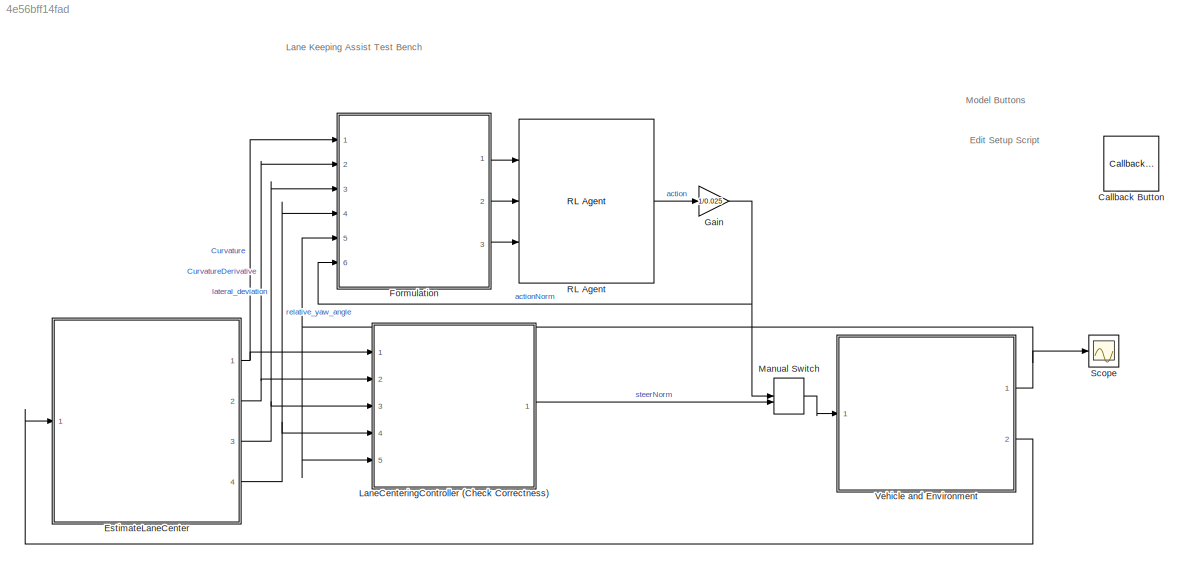
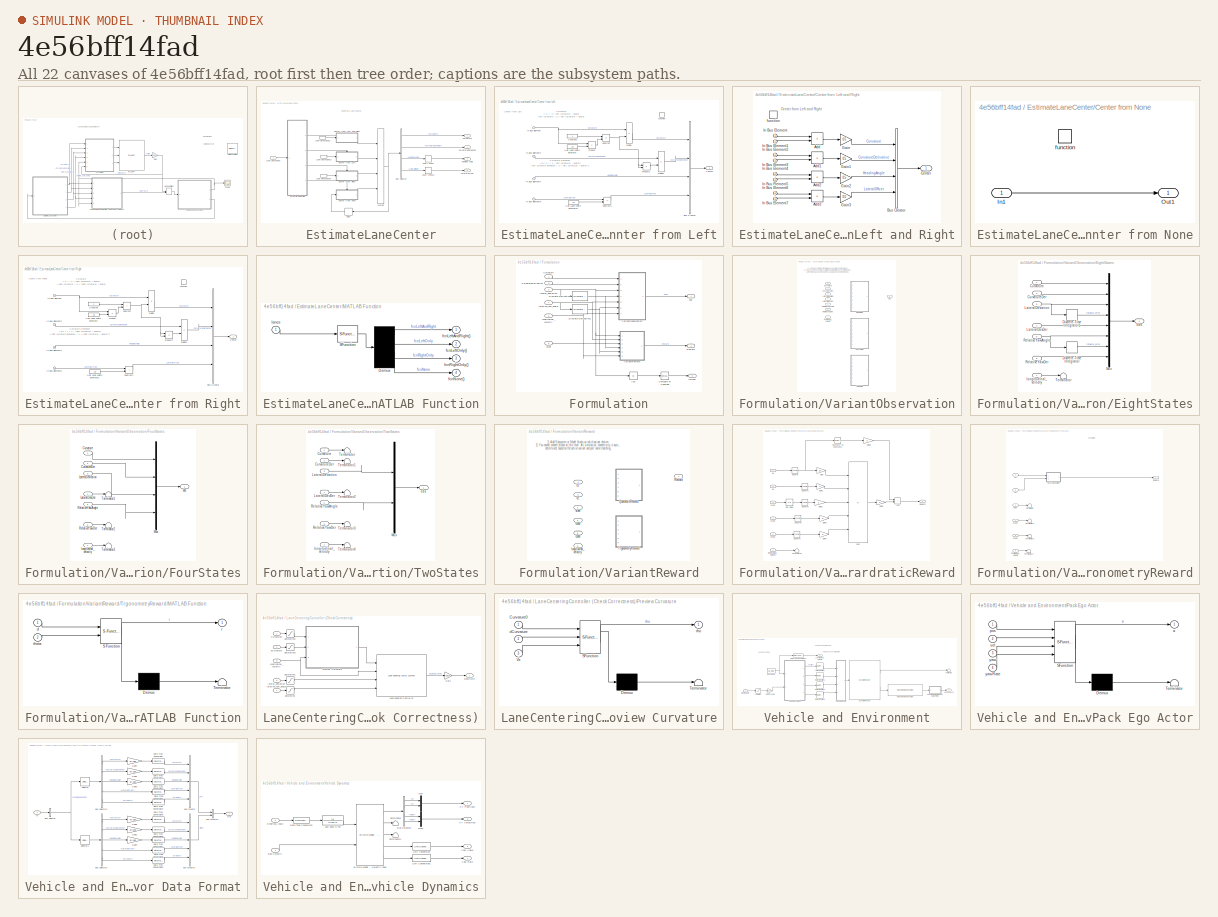
[diagram: thumbnail index - all 22 canvases of the model, root first then tree order]
MODEL slx_4e56bff14fad
KIND model
CONFIG AbsTol = auto
CONFIG EnableMultiTasking = off
CONFIG FixedStep = auto
CONFIG MaxStep = auto
CONFIG MinStep = auto
CONFIG PostLoadFcn = helperLKASetUp
CONFIG RelTol = 1e-3
CONFIG SampleTimeConstraint = Unconstrained
CONFIG SolverName = VariableStepAuto
CONFIG StartTime = 0.0
CONFIG StopTime = simStopTime
BLOCK [CallbackButton] Callback Button
  ButtonText = ?
  ClickFcn = exampleID = 'LaneKeepingAssistWithLaneDetectionExample';\nexampleName = 'lane-keeping-assist-with-lane-detection.html';\nif license('test','automated_driving_toolbox') && ~isempty(ver('driving'))\n    helpview('driving',exampleID);\nelseif license('test','MPC_Toolbox') && ~isempty(ver('mpc'))\n    helpview('mpc',exampleID);\nelse\n    web(fullfile('https://www.mathworks.com/help','driving','examples',exa...<+44ch>
BLOCK [SubSystem] EstimateLaneCenter
  Ports = [1, 4]
  RequestExecContextInheritance = off
  VariantControl = v2
BLOCK [BusSelector] EstimateLaneCenter/Bus Selector
  OutputSignals = Curvature,CurvatureDerivative,HeadingAngle,LateralOffset
  Ports = [1, 4]
BLOCK [SubSystem] EstimateLaneCenter/Center from Left
  Ports = [1, 1, 0, 1]
  RequestExecContextInheritance = off
  TreatAsAtomicUnit = on
BLOCK [SubSystem] EstimateLaneCenter/Center from Left and Right
  Ports = [1, 1, 0, 1]
  RequestExecContextInheritance = off
  TreatAsAtomicUnit = on
BLOCK [Sum] EstimateLaneCenter/Center from Left and Right/Add
  IconShape = rectangular
  Ports = [2, 1]
BLOCK [Sum] EstimateLaneCenter/Center from Left and Right/Add1
  IconShape = rectangular
  Ports = [2, 1]
BLOCK [Sum] EstimateLaneCenter/Center from Left and Right/Add2
  IconShape = rectangular
  Ports = [2, 1]
BLOCK [Sum] EstimateLaneCenter/Center from Left and Right/Add3
  IconShape = rectangular
  Ports = [2, 1]
BLOCK [BusCreator] EstimateLaneCenter/Center from Left and Right/Bus Creator
  DisplayOption = bar
  InheritFromInputs = on
  Inputs = 4
  Ports = [4, 1]
BLOCK [Outport] EstimateLaneCenter/Center from Left and Right/Center
  VectorParamsAs1DForOutWhenUnconnected = off
BLOCK [Gain] EstimateLaneCenter/Center from Left and Right/Gain
  Gain = 0.5
BLOCK [Gain] EstimateLaneCenter/Center from Left and Right/Gain1
  Gain = 0.5
BLOCK [Gain] EstimateLaneCenter/Center from Left and Right/Gain2
  Gain = 0.5
BLOCK [Gain] EstimateLaneCenter/Center from Left and Right/Gain3
  Gain = 0.5
BLOCK [Inport] EstimateLaneCenter/Center from Left and Right/In Bus Element
BLOCK [Inport] EstimateLaneCenter/Center from Left and Right/In Bus Element1
BLOCK [Inport] EstimateLaneCenter/Center from Left and Right/In Bus Element2
BLOCK [Inport] EstimateLaneCenter/Center from Left and Right/In Bus Element3
BLOCK [Inport] EstimateLaneCenter/Center from Left and Right/In Bus Element4
BLOCK [Inport] EstimateLaneCenter/Center from Left and Right/In Bus Element5
BLOCK [Inport] EstimateLaneCenter/Center from Left and Right/In Bus Element6
BLOCK [Inport] EstimateLaneCenter/Center from Left and Right/In Bus Element7
BLOCK [TriggerPort] EstimateLaneCenter/Center from Left and Right/function
  Ports = []
  StatesWhenEnabling = held
  TriggerType = function-call
  VariantControl = Variant
BLOCK [BusCreator] EstimateLaneCenter/Center from Left/Bus Creator
  DisplayOption = bar
  InheritFromInputs = on
  Inputs = 4
  Ports = [4, 1]
BLOCK [Outport] EstimateLaneCenter/Center from Left/Center
  VectorParamsAs1DForOutWhenUnconnected = off
BLOCK [Constant] EstimateLaneCenter/Center from Left/Constant
  OutDataTypeStr = Inherit: Inherit via back propagation
BLOCK [Product] EstimateLaneCenter/Center from Left/Divide
  Inputs = */
  Ports = [2, 1]
BLOCK [Product] EstimateLaneCenter/Center from Left/Divide1
  Inputs = */
  Ports = [2, 1]
BLOCK [Constant] EstimateLaneCenter/Center from Left/Half Lane Width Estimate
  OutDataTypeStr = Inherit: Inherit via back propagation
  Value = 1.8
BLOCK [Constant] EstimateLaneCenter/Center from Left/Half Lane Width Estimate1
  OutDataTypeStr = Inherit: Inherit via back propagation
  Value = 1.8
BLOCK [Inport] EstimateLaneCenter/Center from Left/In Bus Element
BLOCK [Inport] EstimateLaneCenter/Center from Left/In Bus Element2
BLOCK [Inport] EstimateLaneCenter/Center from Left/In Bus Element4
BLOCK [Inport] EstimateLaneCenter/Center from Left/In Bus Element6
BLOCK [Product] EstimateLaneCenter/Center from Left/Product
  Ports = [2, 1]
BLOCK [Product] EstimateLaneCenter/Center from Left/Product1
  Ports = [2, 1]
BLOCK [Sum] EstimateLaneCenter/Center from Left/Subtract
  IconShape = rectangular
  Inputs = +-
  Ports = [2, 1]
BLOCK [Sum] EstimateLaneCenter/Center from Left/Subtract1
  IconShape = rectangular
  Inputs = +-
  Ports = [2, 1]
BLOCK [TriggerPort] EstimateLaneCenter/Center from Left/function
  Ports = []
  StatesWhenEnabling = held
  TriggerType = function-call
  VariantControl = Variant
BLOCK [SubSystem] EstimateLaneCenter/Center from None
  Ports = [1, 1, 0, 1]
  RequestExecContextInheritance = off
  TreatAsAtomicUnit = on
BLOCK [Inport] EstimateLaneCenter/Center from None/In1
BLOCK [Outport] EstimateLaneCenter/Center from None/Out1
  VectorParamsAs1DForOutWhenUnconnected = off
BLOCK [TriggerPort] EstimateLaneCenter/Center from None/function
  Ports = []
  StatesWhenEnabling = held
  TriggerType = function-call
  VariantControl = Variant
BLOCK [SubSystem] EstimateLaneCenter/Center from Right
  Ports = [1, 1, 0, 1]
  RequestExecContextInheritance = off
  TreatAsAtomicUnit = on
BLOCK [BusCreator] EstimateLaneCenter/Center from Right/Bus Creator
  DisplayOption = bar
  InheritFromInputs = on
  Inputs = 4
  Ports = [4, 1]
BLOCK [Outport] EstimateLaneCenter/Center from Right/Center
  VectorParamsAs1DForOutWhenUnconnected = off
BLOCK [Constant] EstimateLaneCenter/Center from Right/Constant
  OutDataTypeStr = Inherit: Inherit via back propagation
BLOCK [Product] EstimateLaneCenter/Center from Right/Divide
  Inputs = */
  Ports = [2, 1]
BLOCK [Product] EstimateLaneCenter/Center from Right/Divide1
  Inputs = */
  Ports = [2, 1]
BLOCK [Constant] EstimateLaneCenter/Center from Right/Half Lane Width Estimate
  OutDataTypeStr = Inherit: Inherit via back propagation
  Value = 1.8
BLOCK [Constant] EstimateLaneCenter/Center from Right/Half Lane Width Estimate1
  OutDataTypeStr = Inherit: Inherit via back propagation
  Value = 1.8
BLOCK [Inport] EstimateLaneCenter/Center from Right/In Bus Element
BLOCK [Inport] EstimateLaneCenter/Center from Right/In Bus Element2
BLOCK [Inport] EstimateLaneCenter/Center from Right/In Bus Element4
BLOCK [Inport] EstimateLaneCenter/Center from Right/In Bus Element6
BLOCK [Product] EstimateLaneCenter/Center from Right/Product
  Ports = [2, 1]
BLOCK [Product] EstimateLaneCenter/Center from Right/Product1
  Ports = [2, 1]
BLOCK [Sum] EstimateLaneCenter/Center from Right/Subtract
  IconShape = rectangular
  Ports = [2, 1]
BLOCK [Sum] EstimateLaneCenter/Center from Right/Subtract1
  IconShape = rectangular
  Ports = [2, 1]
BLOCK [TriggerPort] EstimateLaneCenter/Center from Right/function
  Ports = []
  StatesWhenEnabling = held
  TriggerType = function-call
  VariantControl = Variant
BLOCK [Outport] EstimateLaneCenter/Curvature
  VectorParamsAs1DForOutWhenUnconnected = off
BLOCK [Outport] EstimateLaneCenter/CurvatureDerivative
  Port = 2
  VectorParamsAs1DForOutWhenUnconnected = off
BLOCK [Delay] EstimateLaneCenter/Delay
  DelayLength = 1
  InputPortMap = u0
  Ports = [1, 1]
BLOCK [Outport] EstimateLaneCenter/Heading Angle
  Port = 4
  VectorParamsAs1DForOutWhenUnconnected = off
BLOCK [Inport] EstimateLaneCenter/Lane Detections
BLOCK [InportShadow] EstimateLaneCenter/Lane Detections2
BLOCK [InportShadow] EstimateLaneCenter/Lane Detections3
BLOCK [InportShadow] EstimateLaneCenter/Lane Detections4
BLOCK [Outport] EstimateLaneCenter/Lateral Offset
  Port = 3
  VectorParamsAs1DForOutWhenUnconnected = off
BLOCK [SubSystem] EstimateLaneCenter/MATLAB Function
  ErrorFcn = Stateflow.Translate.translate
  PermitHierarchicalResolution = ExplicitOnly
  Ports = [1, 4]
  RequestExecContextInheritance = off
  SFBlockType = MATLAB Function
  TreatAsAtomicUnit = on
BLOCK [Demux] EstimateLaneCenter/MATLAB Function/ Demux 
  Ports = [1, 4]
BLOCK [S-Function] EstimateLaneCenter/MATLAB Function/ SFunction 
  EnableBusSupport = on
  FunctionName = sf_sfun
  PortCounts = [1 1]
  Ports = [1, 1]
  SFcnIsStateOwnerBlock = off
  SFunctionDeploymentMode = off
  Tag = Stateflow S-Function 9
BLOCK [Outport] EstimateLaneCenter/MATLAB Function/fcnLeftAndRight()
  VectorParamsAs1DForOutWhenUnconnected = off
BLOCK [Outport] EstimateLaneCenter/MATLAB Function/fcnLeftOnly()
  Port = 2
  VectorParamsAs1DForOutWhenUnconnected = off
BLOCK [Outport] EstimateLaneCenter/MATLAB Function/fcnNone()
  Port = 4
  VectorParamsAs1DForOutWhenUnconnected = off
BLOCK [Outport] EstimateLaneCenter/MATLAB Function/fcnRightOnly()
  Port = 3
  VectorParamsAs1DForOutWhenUnconnected = off
BLOCK [Inport] EstimateLaneCenter/MATLAB Function/lanes
BLOCK [Merge] EstimateLaneCenter/Merge
  Inputs = 4
  Ports = [4, 1]
BLOCK [UnaryMinus] EstimateLaneCenter/Unary Minus
BLOCK [UnaryMinus] EstimateLaneCenter/Unary Minus1
BLOCK [SubSystem] Formulation
  Ports = [6, 3]
  RequestExecContextInheritance = off
BLOCK [Abs] Formulation/Abs
  SaturateOnIntegerOverflow = off
BLOCK [Reference] Formulation/Compare To Constant  REF=simulink/Logic and Bit
Operations/Compare
To Constant
  Ports = [1, 1]
  SourceBlock = simulink/Logic and Bit\nOperations/Compare\nTo Constant
  SourceProductBaseCode = SL
  SourceType = Compare To Constant
BLOCK [Inport] Formulation/Curvature
BLOCK [Inport] Formulation/CurvatureDerivative
  Port = 2
BLOCK [Reference] Formulation/Discrete Derivative  REF=simulink/Discrete/Discrete Derivative
  Ports = [1, 1]
  SourceBlock = simulink/Discrete/Discrete Derivative
  SourceProductBaseCode = SL
  SourceType = Discrete Derivative
BLOCK [Reference] Formulation/Discrete Derivative1  REF=simulink/Discrete/Discrete Derivative
  Ports = [1, 1]
  SourceBlock = simulink/Discrete/Discrete Derivative
  SourceProductBaseCode = SL
  SourceType = Discrete Derivative
BLOCK [Outport] Formulation/Reward
  Port = 2
  VectorParamsAs1DForOutWhenUnconnected = off
BLOCK [SubSystem] Formulation/VariantObservation
  Ports = [7, 1]
  RequestExecContextInheritance = off
  Variant = on
BLOCK [Inport] Formulation/VariantObservation/Curvature
BLOCK [Inport] Formulation/VariantObservation/CurvatureDer
  Port = 2
BLOCK [SubSystem] Formulation/VariantObservation/EightStates
  Ports = [7, 1]
  RequestExecContextInheritance = off
  VariantControl = OBSV_MODE_EIGHT
BLOCK [Inport] Formulation/VariantObservation/EightStates/Curvature
BLOCK [Inport] Formulation/VariantObservation/EightStates/CurvatureDer
  Port = 2
BLOCK [DiscreteIntegrator] Formulation/VariantObservation/EightStates/Discrete-Time Integrator
  ICPrevOutput = DiscIntNeverNeededParam
  ICPrevScaledInput = DiscIntNeverNeededParam
  InitialConditionSetting = Auto
  Ports = [1, 1]
  SampleTime = -1
BLOCK [DiscreteIntegrator] Formulation/VariantObservation/EightStates/Discrete-Time Integrator1
  ICPrevOutput = DiscIntNeverNeededParam
  ICPrevScaledInput = DiscIntNeverNeededParam
  InitialConditionSetting = Auto
  Ports = [1, 1]
  SampleTime = -1
BLOCK [Inport] Formulation/VariantObservation/EightStates/LateralDevDer
  Port = 4
BLOCK [Inport] Formulation/VariantObservation/EightStates/LateralDeviation
  Port = 3
BLOCK [Mux] Formulation/VariantObservation/EightStates/Mux
  DisplayOption = bar
  Inputs = 8
  Ports = [8, 1]
BLOCK [Inport] Formulation/VariantObservation/EightStates/RelativeYawAngle
  Port = 5
BLOCK [Inport] Formulation/VariantObservation/EightStates/RelativeYawDer
  Port = 6
BLOCK [Terminator] Formulation/VariantObservation/EightStates/Terminator
BLOCK [Inport] Formulation/VariantObservation/EightStates/longitudinal_velocity
  Port = 7
BLOCK [Outport] Formulation/VariantObservation/EightStates/obs
  VectorParamsAs1DForOutWhenUnconnected = off
BLOCK [SubSystem] Formulation/VariantObservation/FourStates
  Ports = [7, 1]
  RequestExecContextInheritance = off
  VariantControl = OBSV_MODE_FOUR
BLOCK [Inport] Formulation/VariantObservation/FourStates/Curvature
BLOCK [Inport] Formulation/VariantObservation/FourStates/CurvatureDer
  Port = 2
BLOCK [Inport] Formulation/VariantObservation/FourStates/LateralDevDer
  Port = 4
BLOCK [Inport] Formulation/VariantObservation/FourStates/LateralDeviation
  Port = 3
BLOCK [Mux] Formulation/VariantObservation/FourStates/Mux
  DisplayOption = bar
  Ports = [4, 1]
BLOCK [Inport] Formulation/VariantObservation/FourStates/RelativeYawAngle
  Port = 5
BLOCK [Inport] Formulation/VariantObservation/FourStates/RelativeYawDer
  Port = 6
BLOCK [Terminator] Formulation/VariantObservation/FourStates/Terminator1
BLOCK [Terminator] Formulation/VariantObservation/FourStates/Terminator2
BLOCK [Terminator] Formulation/VariantObservation/FourStates/Terminator3
BLOCK [Inport] Formulation/VariantObservation/FourStates/longitudinal_velocity
  Port = 7
BLOCK [Outport] Formulation/VariantObservation/FourStates/obs
  VectorParamsAs1DForOutWhenUnconnected = off
BLOCK [Inport] Formulation/VariantObservation/LateralDevDer
  Port = 4
BLOCK [Inport] Formulation/VariantObservation/LateralDeviation
  Port = 3
BLOCK [Inport] Formulation/VariantObservation/RelativeYawAngle
  Port = 5
BLOCK [Inport] Formulation/VariantObservation/RelativeYawDer
  Port = 6
BLOCK [SubSystem] Formulation/VariantObservation/TwoStates
  Ports = [7, 1]
  RequestExecContextInheritance = off
  VariantControl = OBSV_MODE_TWO
BLOCK [Inport] Formulation/VariantObservation/TwoStates/Curvature
BLOCK [Inport] Formulation/VariantObservation/TwoStates/CurvatureDer
  Port = 2
BLOCK [Inport] Formulation/VariantObservation/TwoStates/LateralDevDer
  Port = 4
BLOCK [Inport] Formulation/VariantObservation/TwoStates/LateralDeviation
  Port = 3
BLOCK [Mux] Formulation/VariantObservation/TwoStates/Mux
  DisplayOption = bar
  Inputs = 2
  Ports = [2, 1]
BLOCK [Inport] Formulation/VariantObservation/TwoStates/RelativeYawAngle
  Port = 5
BLOCK [Inport] Formulation/VariantObservation/TwoStates/RelativeYawDer
  Port = 6
BLOCK [Terminator] Formulation/VariantObservation/TwoStates/Terminator
BLOCK [Terminator] Formulation/VariantObservation/TwoStates/Terminator1
BLOCK [Terminator] Formulation/VariantObservation/TwoStates/Terminator2
BLOCK [Terminator] Formulation/VariantObservation/TwoStates/Terminator3
BLOCK [Terminator] Formulation/VariantObservation/TwoStates/Terminator4
BLOCK [Inport] Formulation/VariantObservation/TwoStates/longitudinal_velocity
  Port = 7
BLOCK [Outport] Formulation/VariantObservation/TwoStates/obs
  VectorParamsAs1DForOutWhenUnconnected = off
BLOCK [Inport] Formulation/VariantObservation/longitudinal_velocity
  Port = 7
BLOCK [Outport] Formulation/VariantObservation/obs
BLOCK [SubSystem] Formulation/VariantReward
  Ports = [6, 1]
  RequestExecContextInheritance = off
  Variant = on
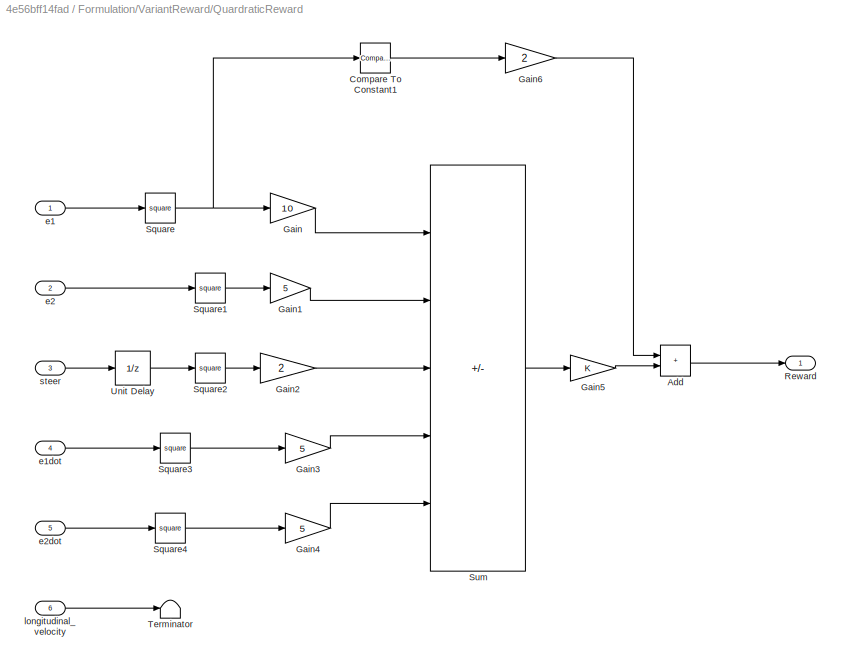
BLOCK [SubSystem] Formulation/VariantReward/QuardraticReward
  Ports = [6, 1]
  RequestExecContextInheritance = off
  VariantControl = REWARD_MODE_QUADRATIC
BLOCK [Sum] Formulation/VariantReward/QuardraticReward/Add
  IconShape = rectangular
  Ports = [2, 1]
BLOCK [Reference] Formulation/VariantReward/QuardraticReward/Compare To Constant1  REF=simulink/Logic and Bit
Operations/Compare
To Constant
  Ports = [1, 1]
  SourceBlock = simulink/Logic and Bit\nOperations/Compare\nTo Constant
  SourceProductBaseCode = SL
  SourceType = Compare To Constant
BLOCK [Gain] Formulation/VariantReward/QuardraticReward/Gain
  Gain = 10
BLOCK [Gain] Formulation/VariantReward/QuardraticReward/Gain1
  Gain = 5
BLOCK [Gain] Formulation/VariantReward/QuardraticReward/Gain2
  Gain = 2
BLOCK [Gain] Formulation/VariantReward/QuardraticReward/Gain3
  Gain = 5
BLOCK [Gain] Formulation/VariantReward/QuardraticReward/Gain4
  Gain = 5
BLOCK [Gain] Formulation/VariantReward/QuardraticReward/Gain5
BLOCK [Gain] Formulation/VariantReward/QuardraticReward/Gain6
  Gain = 2
BLOCK [Outport] Formulation/VariantReward/QuardraticReward/Reward
  VectorParamsAs1DForOutWhenUnconnected = off
BLOCK [Math] Formulation/VariantReward/QuardraticReward/Square
  Operator = square
  Ports = [1, 1]
  SignedPower = on
BLOCK [Math] Formulation/VariantReward/QuardraticReward/Square1
  Operator = square
  Ports = [1, 1]
  SignedPower = on
BLOCK [Math] Formulation/VariantReward/QuardraticReward/Square2
  Operator = square
  Ports = [1, 1]
  SignedPower = on
BLOCK [Math] Formulation/VariantReward/QuardraticReward/Square3
  Operator = square
  Ports = [1, 1]
  SignedPower = on
BLOCK [Math] Formulation/VariantReward/QuardraticReward/Square4
  Operator = square
  Ports = [1, 1]
  SignedPower = on
BLOCK [Sum] Formulation/VariantReward/QuardraticReward/Sum
  IconShape = rectangular
  Inputs = -----
  Ports = [5, 1]
BLOCK [Terminator] Formulation/VariantReward/QuardraticReward/Terminator
BLOCK [UnitDelay] Formulation/VariantReward/QuardraticReward/Unit Delay
  HasFrameUpgradeWarning = on
  SampleTime = -1
BLOCK [Inport] Formulation/VariantReward/QuardraticReward/e1
BLOCK [Inport] Formulation/VariantReward/QuardraticReward/e1dot
  Port = 4
BLOCK [Inport] Formulation/VariantReward/QuardraticReward/e2
  Port = 2
BLOCK [Inport] Formulation/VariantReward/QuardraticReward/e2dot
  Port = 5
BLOCK [Inport] Formulation/VariantReward/QuardraticReward/longitudinal_velocity
  Port = 6
BLOCK [Inport] Formulation/VariantReward/QuardraticReward/steer
  Port = 3
BLOCK [Outport] Formulation/VariantReward/Reward
BLOCK [SubSystem] Formulation/VariantReward/TrgonometryReward
  Ports = [6, 1]
  RequestExecContextInheritance = off
  VariantControl = REWARD_MODE_TRIGONOMETRY
BLOCK [SubSystem] Formulation/VariantReward/TrgonometryReward/MATLAB Function
  ErrorFcn = Stateflow.Translate.translate
  PermitHierarchicalResolution = ExplicitOnly
  Ports = [2, 1]
  RequestExecContextInheritance = off
  SFBlockType = MATLAB Function
  TreatAsAtomicUnit = on
BLOCK [Demux] Formulation/VariantReward/TrgonometryReward/MATLAB Function/ Demux 
  Outputs = 1
  Ports = [1, 1]
BLOCK [S-Function] Formulation/VariantReward/TrgonometryReward/MATLAB Function/ SFunction 
  EnableBusSupport = on
  FunctionName = sf_sfun
  PortCounts = [2 2]
  Ports = [2, 2]
  SFcnIsStateOwnerBlock = off
  SFunctionDeploymentMode = off
  Tag = Stateflow S-Function 2
BLOCK [Terminator] Formulation/VariantReward/TrgonometryReward/MATLAB Function/ Terminator 
BLOCK [Inport] Formulation/VariantReward/TrgonometryReward/MATLAB Function/d
BLOCK [Outport] Formulation/VariantReward/TrgonometryReward/MATLAB Function/r
BLOCK [Inport] Formulation/VariantReward/TrgonometryReward/MATLAB Function/theta
  Port = 2
BLOCK [Outport] Formulation/VariantReward/TrgonometryReward/Reward
  VectorParamsAs1DForOutWhenUnconnected = off
BLOCK [Terminator] Formulation/VariantReward/TrgonometryReward/Terminator
BLOCK [Terminator] Formulation/VariantReward/TrgonometryReward/Terminator1
BLOCK [Terminator] Formulation/VariantReward/TrgonometryReward/Terminator2
BLOCK [Terminator] Formulation/VariantReward/TrgonometryReward/Terminator3
BLOCK [Inport] Formulation/VariantReward/TrgonometryReward/e1
BLOCK [Inport] Formulation/VariantReward/TrgonometryReward/e1dot
  Port = 4
BLOCK [Inport] Formulation/VariantReward/TrgonometryReward/e2
  Port = 2
BLOCK [Inport] Formulation/VariantReward/TrgonometryReward/e2dot
  Port = 5
BLOCK [Inport] Formulation/VariantReward/TrgonometryReward/longitudinal_velocity
  Port = 6
BLOCK [Inport] Formulation/VariantReward/TrgonometryReward/steer
  Port = 3
BLOCK [Inport] Formulation/VariantReward/e1
BLOCK [Inport] Formulation/VariantReward/e1dot
  Port = 4
BLOCK [Inport] Formulation/VariantReward/e2
  Port = 2
BLOCK [Inport] Formulation/VariantReward/e2dot
  Port = 5
BLOCK [Inport] Formulation/VariantReward/longitudinal_velocity
  Port = 6
BLOCK [Inport] Formulation/VariantReward/steer
  Port = 3
BLOCK [Outport] Formulation/isDone
  Port = 3
  VectorParamsAs1DForOutWhenUnconnected = off
BLOCK [Inport] Formulation/lateral_deviation
  Port = 3
BLOCK [Inport] Formulation/longitudinal_velocity
  Port = 5
BLOCK [Outport] Formulation/obs
BLOCK [Inport] Formulation/relative_yaw_angle
  Port = 4
BLOCK [Inport] Formulation/steer
  Port = 6
BLOCK [Gain] Gain
  Gain = 1/0.025
BLOCK [SubSystem] LaneCenteringController (Check Correctness)
  Ports = [5, 1]
  RequestExecContextInheritance = off
BLOCK [Inport] LaneCenteringController (Check Correctness)/Curvature0
BLOCK [Gain] LaneCenteringController (Check Correctness)/Gain
  Gain = 1/0.025
BLOCK [Reference] LaneCenteringController (Check Correctness)/Lane Keeping Controller  REF=mpcadaslib/Lane Keeping Assist System
  Ports = [4, 1]
  SourceBlock = mpcadaslib/Lane Keeping Assist System
  SourceProductBaseCode = MP
  SourceType = Lane Keeping Assist (LKA) System
BLOCK [SubSystem] LaneCenteringController (Check Correctness)/Preview Curvature
  ErrorFcn = Stateflow.Translate.translate
  PermitHierarchicalResolution = ExplicitOnly
  Ports = [3, 1]
  RequestExecContextInheritance = off
  SFBlockType = MATLAB Function
  SystemSampleTime = Ts
  TreatAsAtomicUnit = on
BLOCK [Demux] LaneCenteringController (Check Correctness)/Preview Curvature/ Demux 
  Outputs = 1
  Ports = [1, 1]
BLOCK [S-Function] LaneCenteringController (Check Correctness)/Preview Curvature/ SFunction 
  EnableBusSupport = on
  FunctionName = sf_sfun
  Parameters = PredictionHorizon,Ts
  PortCounts = [3 2]
  Ports = [3, 2]
  SFcnIsStateOwnerBlock = off
  SFunctionDeploymentMode = off
  Tag = Stateflow S-Function 10
BLOCK [Terminator] LaneCenteringController (Check Correctness)/Preview Curvature/ Terminator 
BLOCK [Inport] LaneCenteringController (Check Correctness)/Preview Curvature/Curvature0
BLOCK [Inport] LaneCenteringController (Check Correctness)/Preview Curvature/Vx
  Port = 3
BLOCK [Inport] LaneCenteringController (Check Correctness)/Preview Curvature/dCurvature
  Port = 2
BLOCK [Outport] LaneCenteringController (Check Correctness)/Preview Curvature/rho
  VectorParamsAs1DForOutWhenUnconnected = off
BLOCK [Saturate] LaneCenteringController (Check Correctness)/Saturation
BLOCK [Saturate] LaneCenteringController (Check Correctness)/Saturation1
  LowerLimit = -0.6
  UpperLimit = 0.6
BLOCK [Saturate] LaneCenteringController (Check Correctness)/Saturation2
  LowerLimit = -0.15
  UpperLimit = 0.15
BLOCK [Saturate] LaneCenteringController (Check Correctness)/Saturation3
  LowerLimit = -0.06
  UpperLimit = 0.06
BLOCK [Inport] LaneCenteringController (Check Correctness)/dCurvature
  Port = 2
BLOCK [Inport] LaneCenteringController (Check Correctness)/lateral_deviation
  Port = 3
BLOCK [Inport] LaneCenteringController (Check Correctness)/longitudinal_velocity
  Port = 5
BLOCK [Inport] LaneCenteringController (Check Correctness)/relative_yaw_angle
  Port = 4
BLOCK [Outport] LaneCenteringController (Check Correctness)/steerNorm
BLOCK [ManualSwitch] Manual Switch
BLOCK [Reference] RL Agent  REF=rllib/RL Agent
  Ports = [3, 1]
  SourceBlock = rllib/RL Agent
  SourceProductBaseCode = RL
  SourceType = RL Agent
BLOCK [Scope] Scope
  Floating = off
  NumInputPorts = 1
  Ports = [1]
  ScopeSpecificationString = Simulink.scopes.TimeScopeBlockCfg('CurrentConfiguration', extmgr.ConfigurationSet(extmgr.Configuration('Core','General UI',true),extmgr.Configuration('Core','Source UI',true),extmgr.Configuration('Sources','WiredSimulink',true),extmgr.Configuration('Visuals','Time Domain',true,'SerializedDisplays',{struct('MinYLimReal','13.82665','MaxYLimReal','14.50012','YLabelReal','','MinYLimMag','13.82665','Ma...<+1399ch>
BLOCK [SubSystem] Vehicle and Environment
  Ports = [1, 2]
  RequestExecContextInheritance = off
BLOCK [DataTypeConversion] Vehicle and Environment/Data Type Conversion1
  RndMeth = Floor
  SaturateOnIntegerOverflow = off
BLOCK [Constant] Vehicle and Environment/Ego Velocity
  SampleTime = Ts
  Value = v0_ego
BLOCK [Outport] Vehicle and Environment/Lane Sensor
  Port = 2
  VectorParamsAs1DForOutWhenUnconnected = off
BLOCK [Outport] Vehicle and Environment/Longitudinal Velocity
  OutDataTypeStr = single
  Unit = m/s
  VectorParamsAs1DForOutWhenUnconnected = off
BLOCK [Gain] Vehicle and Environment/NormToAngle
  Gain = 0.025
BLOCK [SubSystem] Vehicle and Environment/Pack Ego Actor
  ErrorFcn = Stateflow.Translate.translate
  PermitHierarchicalResolution = ExplicitOnly
  Ports = [4, 1]
  RequestExecContextInheritance = off
  SFBlockType = MATLAB Function
  TreatAsAtomicUnit = on
BLOCK [Demux] Vehicle and Environment/Pack Ego Actor/ Demux 
  Outputs = 1
  Ports = [1, 1]
BLOCK [S-Function] Vehicle and Environment/Pack Ego Actor/ SFunction 
  EnableBusSupport = on
  FunctionName = sf_sfun
  PortCounts = [4 2]
  Ports = [4, 2]
  SFcnIsStateOwnerBlock = off
  SFunctionDeploymentMode = off
  Tag = Stateflow S-Function 5
BLOCK [Terminator] Vehicle and Environment/Pack Ego Actor/ Terminator 
BLOCK [Outport] Vehicle and Environment/Pack Ego Actor/a
  VectorParamsAs1DForOutWhenUnconnected = off
BLOCK [Inport] Vehicle and Environment/Pack Ego Actor/pos
BLOCK [Inport] Vehicle and Environment/Pack Ego Actor/vel
  Port = 2
BLOCK [Inport] Vehicle and Environment/Pack Ego Actor/yaw
  Port = 3
BLOCK [Inport] Vehicle and Environment/Pack Ego Actor/yawRate
  Port = 4
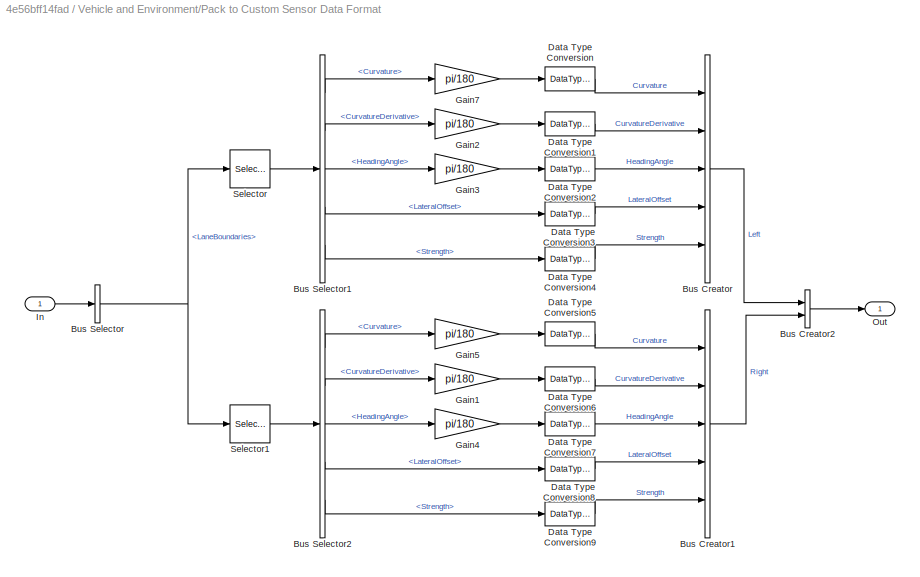
BLOCK [SubSystem] Vehicle and Environment/Pack to Custom Sensor Data Format
  Ports = [1, 1]
  RequestExecContextInheritance = off
BLOCK [BusCreator] Vehicle and Environment/Pack to Custom Sensor Data Format/Bus Creator
  DisplayOption = bar
  InheritFromInputs = on
  Inputs = Curvature,CurvatureDerivative,HeadingAngle,LateralOffset,Strength
  OutDataTypeStr = Bus: LaneSensorBoundaries
  Ports = [5, 1]
BLOCK [BusCreator] Vehicle and Environment/Pack to Custom Sensor Data Format/Bus Creator1
  DisplayOption = bar
  InheritFromInputs = on
  Inputs = Curvature,CurvatureDerivative,HeadingAngle,LateralOffset,Strength
  OutDataTypeStr = Bus: LaneSensorBoundaries
  Ports = [5, 1]
BLOCK [BusCreator] Vehicle and Environment/Pack to Custom Sensor Data Format/Bus Creator2
  DisplayOption = bar
  InheritFromInputs = on
  Inputs = Left,Right
  OutDataTypeStr = Bus: LaneSensor
  Ports = [2, 1]
BLOCK [BusSelector] Vehicle and Environment/Pack to Custom Sensor Data Format/Bus Selector
  OutputSignals = LaneBoundaries
  Ports = [1, 1]
BLOCK [BusSelector] Vehicle and Environment/Pack to Custom Sensor Data Format/Bus Selector1
  OutputSignals = Curvature,CurvatureDerivative,HeadingAngle,LateralOffset,Strength
  Ports = [1, 5]
BLOCK [BusSelector] Vehicle and Environment/Pack to Custom Sensor Data Format/Bus Selector2
  OutputSignals = Curvature,CurvatureDerivative,HeadingAngle,LateralOffset,Strength
  Ports = [1, 5]
BLOCK [DataTypeConversion] Vehicle and Environment/Pack to Custom Sensor Data Format/Data Type Conversion
  RndMeth = Floor
  SaturateOnIntegerOverflow = off
BLOCK [DataTypeConversion] Vehicle and Environment/Pack to Custom Sensor Data Format/Data Type Conversion1
  RndMeth = Floor
  SaturateOnIntegerOverflow = off
BLOCK [DataTypeConversion] Vehicle and Environment/Pack to Custom Sensor Data Format/Data Type Conversion2
  RndMeth = Floor
  SaturateOnIntegerOverflow = off
BLOCK [DataTypeConversion] Vehicle and Environment/Pack to Custom Sensor Data Format/Data Type Conversion3
  RndMeth = Floor
  SaturateOnIntegerOverflow = off
BLOCK [DataTypeConversion] Vehicle and Environment/Pack to Custom Sensor Data Format/Data Type Conversion4
  RndMeth = Floor
  SaturateOnIntegerOverflow = off
BLOCK [DataTypeConversion] Vehicle and Environment/Pack to Custom Sensor Data Format/Data Type Conversion5
  RndMeth = Floor
  SaturateOnIntegerOverflow = off
BLOCK [DataTypeConversion] Vehicle and Environment/Pack to Custom Sensor Data Format/Data Type Conversion6
  RndMeth = Floor
  SaturateOnIntegerOverflow = off
BLOCK [DataTypeConversion] Vehicle and Environment/Pack to Custom Sensor Data Format/Data Type Conversion7
  RndMeth = Floor
  SaturateOnIntegerOverflow = off
BLOCK [DataTypeConversion] Vehicle and Environment/Pack to Custom Sensor Data Format/Data Type Conversion8
  RndMeth = Floor
  SaturateOnIntegerOverflow = off
BLOCK [DataTypeConversion] Vehicle and Environment/Pack to Custom Sensor Data Format/Data Type Conversion9
  RndMeth = Floor
  SaturateOnIntegerOverflow = off
BLOCK [Gain] Vehicle and Environment/Pack to Custom Sensor Data Format/Gain1
  Gain = pi/180
BLOCK [Gain] Vehicle and Environment/Pack to Custom Sensor Data Format/Gain2
  Gain = pi/180
BLOCK [Gain] Vehicle and Environment/Pack to Custom Sensor Data Format/Gain3
  Gain = pi/180
BLOCK [Gain] Vehicle and Environment/Pack to Custom Sensor Data Format/Gain4
  Gain = pi/180
BLOCK [Gain] Vehicle and Environment/Pack to Custom Sensor Data Format/Gain5
  Gain = pi/180
BLOCK [Gain] Vehicle and Environment/Pack to Custom Sensor Data Format/Gain7
  Gain = pi/180
BLOCK [Inport] Vehicle and Environment/Pack to Custom Sensor Data Format/In
BLOCK [Outport] Vehicle and Environment/Pack to Custom Sensor Data Format/Out
  VectorParamsAs1DForOutWhenUnconnected = off
BLOCK [Selector] Vehicle and Environment/Pack to Custom Sensor Data Format/Selector
  IndexOptions = Index vector (dialog)
  Indices = 1
  InputPortWidth = 2
  OutputSizes = 1
  Ports = [1, 1]
BLOCK [Selector] Vehicle and Environment/Pack to Custom Sensor Data Format/Selector1
  IndexOptions = Index vector (dialog)
  Indices = 2
  InputPortWidth = 2
  OutputSizes = 1
  Ports = [1, 1]
BLOCK [RateTransition] Vehicle and Environment/Rate Transition
  OutPortSampleTime = Ts
BLOCK [RateTransition] Vehicle and Environment/Rate Transition1
  OutPortSampleTime = Ts
BLOCK [RateTransition] Vehicle and Environment/Rate Transition2
  OutPortSampleTime = Ts
BLOCK [RateTransition] Vehicle and Environment/Rate Transition3
  OutPortSampleTime = Ts
BLOCK [Saturate] Vehicle and Environment/Saturation
  LowerLimit = -1
  UpperLimit = 1
BLOCK [Reference] Vehicle and Environment/Scenario Reader  REF=drivingscenarioandsensors/Scenario Reader
  Ports = [1, 2]
  SourceBlock = drivingscenarioandsensors/Scenario Reader
  SourceProductBaseCode = DR
  SourceType = driving.scenario.internal.ScenarioReader
BLOCK [Inport] Vehicle and Environment/SteeringNorm
  Unit = rad
BLOCK [Terminator] Vehicle and Environment/Terminator
BLOCK [SubSystem] Vehicle and Environment/Vehicle Dynamics
  Ports = [2, 4]
  RequestExecContextInheritance = off
  VariantControl = VariantVDBS
BLOCK [Reference] Vehicle and Environment/Vehicle Dynamics/Bicycle Model - Velocity Input  REF=autolibshared/Bicycle Model - Velocity Input
  Ports = [2, 5]
  SourceBlock = autolibshared/Bicycle Model - Velocity Input
  SourceProductBaseCode = PW,MT,UV,VE,VP
  SourceType = Vehicle Body 3DOF Lateral
BLOCK [BusSelector] Vehicle and Environment/Vehicle Dynamics/Bus Selector
  OutputSignals = InertFrm.FrntAxl.Disp.X,InertFrm.FrntAxl.Disp.Y,InertFrm.FrntAxl.Vel.Xdot,InertFrm.FrntAxl.Vel.Ydot
  Ports = [1, 4]
BLOCK [DataTypeConversion] Vehicle and Environment/Vehicle Dynamics/Data Type Conversion
  RndMeth = Floor
  SaturateOnIntegerOverflow = off
BLOCK [Inport] Vehicle and Environment/Vehicle Dynamics/Ego Velocity
BLOCK [TransferFcn] Vehicle and Environment/Vehicle Dynamics/Low pass filter
  Denominator = [0.001 1]
BLOCK [Mux] Vehicle and Environment/Vehicle Dynamics/Mux
  DisplayOption = bar
  Inputs = 2
  Ports = [2, 1]
BLOCK [Mux] Vehicle and Environment/Vehicle Dynamics/Mux1
  DisplayOption = bar
  Inputs = 2
  Ports = [2, 1]
BLOCK [Inport] Vehicle and Environment/Vehicle Dynamics/Steering Angle
  Port = 2
BLOCK [Terminator] Vehicle and Environment/Vehicle Dynamics/Terminator
BLOCK [Terminator] Vehicle and Environment/Vehicle Dynamics/Terminator1
BLOCK [UnitConversion] Vehicle and Environment/Vehicle Dynamics/Unit Conversion
  OutputType = Inherit: Inherit via back propagation
BLOCK [UnitConversion] Vehicle and Environment/Vehicle Dynamics/Unit Conversion1
  OutputType = Inherit: Inherit via back propagation
BLOCK [Outport] Vehicle and Environment/Vehicle Dynamics/XY Positions
  Unit = m
  VectorParamsAs1DForOutWhenUnconnected = off
BLOCK [Outport] Vehicle and Environment/Vehicle Dynamics/XY Velocities
  Port = 2
  Unit = m/s
  VectorParamsAs1DForOutWhenUnconnected = off
BLOCK [Outport] Vehicle and Environment/Vehicle Dynamics/Yaw Angle
  Port = 3
  Unit = deg
  VectorParamsAs1DForOutWhenUnconnected = off
BLOCK [Outport] Vehicle and Environment/Vehicle Dynamics/Yaw Rate
  Port = 4
  Unit = degree/s
  VectorParamsAs1DForOutWhenUnconnected = off
BLOCK [Reference] Vehicle and Environment/Vision Detection Generator  REF=drivingscenarioandsensors/Vision Detection Generator
  Ports = [1, 1]
  SourceBlock = drivingscenarioandsensors/Vision Detection Generator
  SourceProductBaseCode = DR
  SourceType = visionDetectionGenerator
ANNOTATION (root): Edit Setup Script
ANNOTATION (root): Lane Keeping Assist Test Bench
ANNOTATION (root): Model Buttons
ANNOTATION EstimateLaneCenter: Estimate Lane Center
ANNOTATION EstimateLaneCenter/Center from Left: Center from Left
ANNOTATION EstimateLaneCenter/Center from Left: Curvature = 1 / ( 1 / (left curvature) – guard) = left curvature / (1 – (left curvature) * guard).
ANNOTATION EstimateLaneCenter/Center from Left: Curvature Derivative = D[ 1 / ( 1 / (left curvature) – guard)] = left curvature derivative / (1 – (left curvature) * guard)^2.
ANNOTATION EstimateLaneCenter/Center from Left and Right: Center from Left and Right
ANNOTATION EstimateLaneCenter/Center from Right: Center from Right
ANNOTATION EstimateLaneCenter/Center from Right: Curvature = 1 / ( 1 / (right curvature) + guard) = right curvature / (1 + (right curvature) * guard)
ANNOTATION EstimateLaneCenter/Center from Right: Curvature Derivative = D[ 1 / ( 1 / (right curvature) + guard)] = right curvature derivative / (1 + (right curvature) * guard)^2
ANNOTATION Formulation/VariantObservation: 1) Add Subsystem or Model blocks as valid variant choices. 2) You cannot connect blocks at this level. At simulation, connectivity is automatically determined, based on the active variant and port name matching.
ANNOTATION Formulation/VariantReward: 1) Add Subsystem or Model blocks as valid variant choices. 2) You cannot connect blocks at this level. At simulation, connectivity is automatically determined, based on the active variant and port name matching.
ANNOTATION Formulation/VariantReward/TrgonometryReward: annotation
ANNOTATION Vehicle and Environment: Vehicle and Environment
ANNOTATION Vehicle and Environment: Actors and Sensor Simulation
ANNOTATION Vehicle and Environment: Vehicle dynamics
LINE EstimateLaneCenter/Bus Selector:1 -> EstimateLaneCenter/Curvature:1
LINE EstimateLaneCenter/Bus Selector:2 -> EstimateLaneCenter/CurvatureDerivative:1
LINE EstimateLaneCenter/Bus Selector:3 -> EstimateLaneCenter/Unary Minus:1
LINE EstimateLaneCenter/Bus Selector:4 -> EstimateLaneCenter/Unary Minus1:1
LINE EstimateLaneCenter/Center from Left and Right/Add1:1 -> EstimateLaneCenter/Center from Left and Right/Gain1:1
LINE EstimateLaneCenter/Center from Left and Right/Add2:1 -> EstimateLaneCenter/Center from Left and Right/Gain2:1
LINE EstimateLaneCenter/Center from Left and Right/Add3:1 -> EstimateLaneCenter/Center from Left and Right/Gain3:1
LINE EstimateLaneCenter/Center from Left and Right/Add:1 -> EstimateLaneCenter/Center from Left and Right/Gain:1
LINE EstimateLaneCenter/Center from Left and Right/Bus Creator:1 -> EstimateLaneCenter/Center from Left and Right/Center:1
LINE EstimateLaneCenter/Center from Left and Right/Gain1:1 -> EstimateLaneCenter/Center from Left and Right/Bus Creator:2
LINE EstimateLaneCenter/Center from Left and Right/Gain2:1 -> EstimateLaneCenter/Center from Left and Right/Bus Creator:3
LINE EstimateLaneCenter/Center from Left and Right/Gain3:1 -> EstimateLaneCenter/Center from Left and Right/Bus Creator:4
LINE EstimateLaneCenter/Center from Left and Right/Gain:1 -> EstimateLaneCenter/Center from Left and Right/Bus Creator:1
LINE EstimateLaneCenter/Center from Left and Right/In Bus Element1:1 -> EstimateLaneCenter/Center from Left and Right/Add:2
LINE EstimateLaneCenter/Center from Left and Right/In Bus Element2:1 -> EstimateLaneCenter/Center from Left and Right/Add1:1
LINE EstimateLaneCenter/Center from Left and Right/In Bus Element3:1 -> EstimateLaneCenter/Center from Left and Right/Add1:2
LINE EstimateLaneCenter/Center from Left and Right/In Bus Element4:1 -> EstimateLaneCenter/Center from Left and Right/Add2:1
LINE EstimateLaneCenter/Center from Left and Right/In Bus Element5:1 -> EstimateLaneCenter/Center from Left and Right/Add2:2
LINE EstimateLaneCenter/Center from Left and Right/In Bus Element6:1 -> EstimateLaneCenter/Center from Left and Right/Add3:1
LINE EstimateLaneCenter/Center from Left and Right/In Bus Element7:1 -> EstimateLaneCenter/Center from Left and Right/Add3:2
LINE EstimateLaneCenter/Center from Left and Right/In Bus Element:1 -> EstimateLaneCenter/Center from Left and Right/Add:1
LINE EstimateLaneCenter/Center from Left and Right:1 -> EstimateLaneCenter/Merge:1
LINE EstimateLaneCenter/Center from Left/Bus Creator:1 -> EstimateLaneCenter/Center from Left/Center:1
LINE EstimateLaneCenter/Center from Left/Constant:1 -> EstimateLaneCenter/Center from Left/Subtract:1
LINE EstimateLaneCenter/Center from Left/Divide1:1 -> EstimateLaneCenter/Center from Left/Bus Creator:2
LINE EstimateLaneCenter/Center from Left/Divide:1 -> EstimateLaneCenter/Center from Left/Bus Creator:1
LINE EstimateLaneCenter/Center from Left/Half Lane Width Estimate1:1 -> EstimateLaneCenter/Center from Left/Subtract1:2
LINE EstimateLaneCenter/Center from Left/Half Lane Width Estimate:1 -> EstimateLaneCenter/Center from Left/Product:2
LINE EstimateLaneCenter/Center from Left/In Bus Element2:1 -> EstimateLaneCenter/Center from Left/Divide1:1
LINE EstimateLaneCenter/Center from Left/In Bus Element4:1 -> EstimateLaneCenter/Center from Left/Bus Creator:3
LINE EstimateLaneCenter/Center from Left/In Bus Element6:1 -> EstimateLaneCenter/Center from Left/Subtract1:1
NET EstimateLaneCenter/Center from Left/In Bus Element:1 -> EstimateLaneCenter/Center from Left/Divide:1, EstimateLaneCenter/Center from Left/Product:1
LINE EstimateLaneCenter/Center from Left/Product1:1 -> EstimateLaneCenter/Center from Left/Divide1:2
LINE EstimateLaneCenter/Center from Left/Product:1 -> EstimateLaneCenter/Center from Left/Subtract:2
LINE EstimateLaneCenter/Center from Left/Subtract1:1 -> EstimateLaneCenter/Center from Left/Bus Creator:4
NET EstimateLaneCenter/Center from Left/Subtract:1 -> EstimateLaneCenter/Center from Left/Divide:2, EstimateLaneCenter/Center from Left/Product1:1, EstimateLaneCenter/Center from Left/Product1:2
LINE EstimateLaneCenter/Center from Left:1 -> EstimateLaneCenter/Merge:2
LINE EstimateLaneCenter/Center from None/In1:1 -> EstimateLaneCenter/Center from None/Out1:1
LINE EstimateLaneCenter/Center from None:1 -> EstimateLaneCenter/Merge:4
LINE EstimateLaneCenter/Center from Right/Bus Creator:1 -> EstimateLaneCenter/Center from Right/Center:1
LINE EstimateLaneCenter/Center from Right/Constant:1 -> EstimateLaneCenter/Center from Right/Subtract:1
LINE EstimateLaneCenter/Center from Right/Divide1:1 -> EstimateLaneCenter/Center from Right/Bus Creator:2
LINE EstimateLaneCenter/Center from Right/Divide:1 -> EstimateLaneCenter/Center from Right/Bus Creator:1
LINE EstimateLaneCenter/Center from Right/Half Lane Width Estimate1:1 -> EstimateLaneCenter/Center from Right/Subtract1:2
LINE EstimateLaneCenter/Center from Right/Half Lane Width Estimate:1 -> EstimateLaneCenter/Center from Right/Product:2
LINE EstimateLaneCenter/Center from Right/In Bus Element2:1 -> EstimateLaneCenter/Center from Right/Divide1:1
LINE EstimateLaneCenter/Center from Right/In Bus Element4:1 -> EstimateLaneCenter/Center from Right/Bus Creator:3
LINE EstimateLaneCenter/Center from Right/In Bus Element6:1 -> EstimateLaneCenter/Center from Right/Subtract1:1
NET EstimateLaneCenter/Center from Right/In Bus Element:1 -> EstimateLaneCenter/Center from Right/Divide:1, EstimateLaneCenter/Center from Right/Product:1
LINE EstimateLaneCenter/Center from Right/Product1:1 -> EstimateLaneCenter/Center from Right/Divide1:2
LINE EstimateLaneCenter/Center from Right/Product:1 -> EstimateLaneCenter/Center from Right/Subtract:2
LINE EstimateLaneCenter/Center from Right/Subtract1:1 -> EstimateLaneCenter/Center from Right/Bus Creator:4
NET EstimateLaneCenter/Center from Right/Subtract:1 -> EstimateLaneCenter/Center from Right/Divide:2, EstimateLaneCenter/Center from Right/Product1:1, EstimateLaneCenter/Center from Right/Product1:2
LINE EstimateLaneCenter/Center from Right:1 -> EstimateLaneCenter/Merge:3
LINE EstimateLaneCenter/Delay:1 -> EstimateLaneCenter/Center from None:1
LINE EstimateLaneCenter/Lane Detections2:1 -> EstimateLaneCenter/Center from Left and Right:1
LINE EstimateLaneCenter/Lane Detections3:1 -> EstimateLaneCenter/Center from Left:1
LINE EstimateLaneCenter/Lane Detections4:1 -> EstimateLaneCenter/Center from Right:1
LINE EstimateLaneCenter/Lane Detections:1 -> EstimateLaneCenter/MATLAB Function:1
LINE EstimateLaneCenter/MATLAB Function:1 -> EstimateLaneCenter/Center from Left and Right:trigger
LINE EstimateLaneCenter/MATLAB Function:2 -> EstimateLaneCenter/Center from Left:trigger
LINE EstimateLaneCenter/MATLAB Function:3 -> EstimateLaneCenter/Center from Right:trigger
LINE EstimateLaneCenter/MATLAB Function:4 -> EstimateLaneCenter/Center from None:trigger
NET EstimateLaneCenter/Merge:1 -> EstimateLaneCenter/Bus Selector:1, EstimateLaneCenter/Delay:1
LINE EstimateLaneCenter/Unary Minus1:1 -> EstimateLaneCenter/Lateral Offset:1
LINE EstimateLaneCenter/Unary Minus:1 -> EstimateLaneCenter/Heading Angle:1
NET EstimateLaneCenter:1 -> Formulation:1, LaneCenteringController (Check Correctness):1
NET EstimateLaneCenter:2 -> Formulation:2, LaneCenteringController (Check Correctness):2
NET EstimateLaneCenter:3 -> Formulation:3, LaneCenteringController (Check Correctness):3
NET EstimateLaneCenter:4 -> Formulation:4, LaneCenteringController (Check Correctness):4
LINE Formulation/Abs:1 -> Formulation/Compare To Constant:1
LINE Formulation/Compare To Constant:1 -> Formulation/isDone:1
LINE Formulation/Curvature:1 -> Formulation/VariantObservation:1
LINE Formulation/CurvatureDerivative:1 -> Formulation/VariantObservation:2
NET Formulation/Discrete Derivative1:1 -> Formulation/VariantObservation:6, Formulation/VariantReward:5
NET Formulation/Discrete Derivative:1 -> Formulation/VariantObservation:4, Formulation/VariantReward:4
LINE Formulation/VariantObservation/EightStates/Curvature:1 -> Formulation/VariantObservation/EightStates/Mux:1
LINE Formulation/VariantObservation/EightStates/CurvatureDer:1 -> Formulation/VariantObservation/EightStates/Mux:2
LINE Formulation/VariantObservation/EightStates/Discrete-Time Integrator1:1 -> Formulation/VariantObservation/EightStates/Mux:4
LINE Formulation/VariantObservation/EightStates/Discrete-Time Integrator:1 -> Formulation/VariantObservation/EightStates/Mux:7
LINE Formulation/VariantObservation/EightStates/LateralDevDer:1 -> Formulation/VariantObservation/EightStates/Mux:5
NET Formulation/VariantObservation/EightStates/LateralDeviation:1 -> Formulation/VariantObservation/EightStates/Discrete-Time Integrator1:1, Formulation/VariantObservation/EightStates/Mux:3
LINE Formulation/VariantObservation/EightStates/Mux:1 -> Formulation/VariantObservation/EightStates/obs:1
NET Formulation/VariantObservation/EightStates/RelativeYawAngle:1 -> Formulation/VariantObservation/EightStates/Discrete-Time Integrator:1, Formulation/VariantObservation/EightStates/Mux:6
LINE Formulation/VariantObservation/EightStates/RelativeYawDer:1 -> Formulation/VariantObservation/EightStates/Mux:8
LINE Formulation/VariantObservation/EightStates/longitudinal_velocity:1 -> Formulation/VariantObservation/EightStates/Terminator:1
LINE Formulation/VariantObservation/FourStates/Curvature:1 -> Formulation/VariantObservation/FourStates/Mux:1
LINE Formulation/VariantObservation/FourStates/CurvatureDer:1 -> Formulation/VariantObservation/FourStates/Mux:2
LINE Formulation/VariantObservation/FourStates/LateralDevDer:1 -> Formulation/VariantObservation/FourStates/Terminator1:1
LINE Formulation/VariantObservation/FourStates/LateralDeviation:1 -> Formulation/VariantObservation/FourStates/Mux:3
LINE Formulation/VariantObservation/FourStates/Mux:1 -> Formulation/VariantObservation/FourStates/obs:1
LINE Formulation/VariantObservation/FourStates/RelativeYawAngle:1 -> Formulation/VariantObservation/FourStates/Mux:4
LINE Formulation/VariantObservation/FourStates/RelativeYawDer:1 -> Formulation/VariantObservation/FourStates/Terminator2:1
LINE Formulation/VariantObservation/FourStates/longitudinal_velocity:1 -> Formulation/VariantObservation/FourStates/Terminator3:1
LINE Formulation/VariantObservation/TwoStates/Curvature:1 -> Formulation/VariantObservation/TwoStates/Terminator:1
LINE Formulation/VariantObservation/TwoStates/CurvatureDer:1 -> Formulation/VariantObservation/TwoStates/Terminator1:1
LINE Formulation/VariantObservation/TwoStates/LateralDevDer:1 -> Formulation/VariantObservation/TwoStates/Terminator2:1
LINE Formulation/VariantObservation/TwoStates/LateralDeviation:1 -> Formulation/VariantObservation/TwoStates/Mux:1
LINE Formulation/VariantObservation/TwoStates/Mux:1 -> Formulation/VariantObservation/TwoStates/obs:1
LINE Formulation/VariantObservation/TwoStates/RelativeYawAngle:1 -> Formulation/VariantObservation/TwoStates/Mux:2
LINE Formulation/VariantObservation/TwoStates/RelativeYawDer:1 -> Formulation/VariantObservation/TwoStates/Terminator3:1
LINE Formulation/VariantObservation/TwoStates/longitudinal_velocity:1 -> Formulation/VariantObservation/TwoStates/Terminator4:1
LINE Formulation/VariantObservation:1 -> Formulation/obs:1
LINE Formulation/VariantReward/QuardraticReward/Add:1 -> Formulation/VariantReward/QuardraticReward/Reward:1
LINE Formulation/VariantReward/QuardraticReward/Compare To Constant1:1 -> Formulation/VariantReward/QuardraticReward/Gain6:1
LINE Formulation/VariantReward/QuardraticReward/Gain1:1 -> Formulation/VariantReward/QuardraticReward/Sum:2
LINE Formulation/VariantReward/QuardraticReward/Gain2:1 -> Formulation/VariantReward/QuardraticReward/Sum:3
LINE Formulation/VariantReward/QuardraticReward/Gain3:1 -> Formulation/VariantReward/QuardraticReward/Sum:4
LINE Formulation/VariantReward/QuardraticReward/Gain4:1 -> Formulation/VariantReward/QuardraticReward/Sum:5
LINE Formulation/VariantReward/QuardraticReward/Gain5:1 -> Formulation/VariantReward/QuardraticReward/Add:2
LINE Formulation/VariantReward/QuardraticReward/Gain6:1 -> Formulation/VariantReward/QuardraticReward/Add:1
LINE Formulation/VariantReward/QuardraticReward/Gain:1 -> Formulation/VariantReward/QuardraticReward/Sum:1
LINE Formulation/VariantReward/QuardraticReward/Square1:1 -> Formulation/VariantReward/QuardraticReward/Gain1:1
LINE Formulation/VariantReward/QuardraticReward/Square2:1 -> Formulation/VariantReward/QuardraticReward/Gain2:1
LINE Formulation/VariantReward/QuardraticReward/Square3:1 -> Formulation/VariantReward/QuardraticReward/Gain3:1
LINE Formulation/VariantReward/QuardraticReward/Square4:1 -> Formulation/VariantReward/QuardraticReward/Gain4:1
NET Formulation/VariantReward/QuardraticReward/Square:1 -> Formulation/VariantReward/QuardraticReward/Compare To Constant1:1, Formulation/VariantReward/QuardraticReward/Gain:1
LINE Formulation/VariantReward/QuardraticReward/Sum:1 -> Formulation/VariantReward/QuardraticReward/Gain5:1
LINE Formulation/VariantReward/QuardraticReward/Unit Delay:1 -> Formulation/VariantReward/QuardraticReward/Square2:1
LINE Formulation/VariantReward/QuardraticReward/e1:1 -> Formulation/VariantReward/QuardraticReward/Square:1
LINE Formulation/VariantReward/QuardraticReward/e1dot:1 -> Formulation/VariantReward/QuardraticReward/Square3:1
LINE Formulation/VariantReward/QuardraticReward/e2:1 -> Formulation/VariantReward/QuardraticReward/Square1:1
LINE Formulation/VariantReward/QuardraticReward/e2dot:1 -> Formulation/VariantReward/QuardraticReward/Square4:1
LINE Formulation/VariantReward/QuardraticReward/longitudinal_velocity:1 -> Formulation/VariantReward/QuardraticReward/Terminator:1
LINE Formulation/VariantReward/QuardraticReward/steer:1 -> Formulation/VariantReward/QuardraticReward/Unit Delay:1
LINE Formulation/VariantReward/TrgonometryReward/MATLAB Function:1 -> Formulation/VariantReward/TrgonometryReward/Reward:1
LINE Formulation/VariantReward/TrgonometryReward/e1:1 -> Formulation/VariantReward/TrgonometryReward/MATLAB Function:1
LINE Formulation/VariantReward/TrgonometryReward/e1dot:1 -> Formulation/VariantReward/TrgonometryReward/Terminator1:1
LINE Formulation/VariantReward/TrgonometryReward/e2:1 -> Formulation/VariantReward/TrgonometryReward/MATLAB Function:2
LINE Formulation/VariantReward/TrgonometryReward/e2dot:1 -> Formulation/VariantReward/TrgonometryReward/Terminator2:1
LINE Formulation/VariantReward/TrgonometryReward/longitudinal_velocity:1 -> Formulation/VariantReward/TrgonometryReward/Terminator3:1
LINE Formulation/VariantReward/TrgonometryReward/steer:1 -> Formulation/VariantReward/TrgonometryReward/Terminator:1
LINE Formulation/VariantReward:1 -> Formulation/Reward:1
NET Formulation/lateral_deviation:1 -> Formulation/Abs:1, Formulation/Discrete Derivative:1, Formulation/VariantObservation:3, Formulation/VariantReward:1
NET Formulation/longitudinal_velocity:1 -> Formulation/VariantObservation:7, Formulation/VariantReward:6
NET Formulation/relative_yaw_angle:1 -> Formulation/Discrete Derivative1:1, Formulation/VariantObservation:5, Formulation/VariantReward:2
LINE Formulation/steer:1 -> Formulation/VariantReward:3
LINE Formulation:1 -> RL Agent:1
LINE Formulation:2 -> RL Agent:2
LINE Formulation:3 -> RL Agent:3
NET Gain:1 -> Formulation:6, Manual Switch:1
LINE LaneCenteringController (Check Correctness)/Curvature0:1 -> LaneCenteringController (Check Correctness)/Saturation2:1
LINE LaneCenteringController (Check Correctness)/Gain:1 -> LaneCenteringController (Check Correctness)/steerNorm:1
LINE LaneCenteringController (Check Correctness)/Lane Keeping Controller:1 -> LaneCenteringController (Check Correctness)/Gain:1
LINE LaneCenteringController (Check Correctness)/Preview Curvature:1 -> LaneCenteringController (Check Correctness)/Lane Keeping Controller:1
LINE LaneCenteringController (Check Correctness)/Saturation1:1 -> LaneCenteringController (Check Correctness)/Lane Keeping Controller:3
LINE LaneCenteringController (Check Correctness)/Saturation2:1 -> LaneCenteringController (Check Correctness)/Preview Curvature:1
LINE LaneCenteringController (Check Correctness)/Saturation3:1 -> LaneCenteringController (Check Correctness)/Preview Curvature:2
LINE LaneCenteringController (Check Correctness)/Saturation:1 -> LaneCenteringController (Check Correctness)/Lane Keeping Controller:4
LINE LaneCenteringController (Check Correctness)/dCurvature:1 -> LaneCenteringController (Check Correctness)/Saturation3:1
LINE LaneCenteringController (Check Correctness)/lateral_deviation:1 -> LaneCenteringController (Check Correctness)/Saturation1:1
NET LaneCenteringController (Check Correctness)/longitudinal_velocity:1 -> LaneCenteringController (Check Correctness)/Lane Keeping Controller:2, LaneCenteringController (Check Correctness)/Preview Curvature:3
LINE LaneCenteringController (Check Correctness)/relative_yaw_angle:1 -> LaneCenteringController (Check Correctness)/Saturation:1
LINE LaneCenteringController (Check Correctness):1 -> Manual Switch:2
LINE Manual Switch:1 -> Vehicle and Environment:1
LINE RL Agent:1 -> Gain:1
LINE Vehicle and Environment/Data Type Conversion1:1 -> Vehicle and Environment/Longitudinal Velocity:1
NET Vehicle and Environment/Ego Velocity:1 -> Vehicle and Environment/Data Type Conversion1:1, Vehicle and Environment/Vehicle Dynamics:1
LINE Vehicle and Environment/NormToAngle:1 -> Vehicle and Environment/Vehicle Dynamics:2
LINE Vehicle and Environment/Pack Ego Actor:1 -> Vehicle and Environment/Scenario Reader:1
LINE Vehicle and Environment/Pack to Custom Sensor Data Format/Bus Creator1:1 -> Vehicle and Environment/Pack to Custom Sensor Data Format/Bus Creator2:2
LINE Vehicle and Environment/Pack to Custom Sensor Data Format/Bus Creator2:1 -> Vehicle and Environment/Pack to Custom Sensor Data Format/Out:1
LINE Vehicle and Environment/Pack to Custom Sensor Data Format/Bus Creator:1 -> Vehicle and Environment/Pack to Custom Sensor Data Format/Bus Creator2:1
LINE Vehicle and Environment/Pack to Custom Sensor Data Format/Bus Selector1:1 -> Vehicle and Environment/Pack to Custom Sensor Data Format/Gain7:1
LINE Vehicle and Environment/Pack to Custom Sensor Data Format/Bus Selector1:2 -> Vehicle and Environment/Pack to Custom Sensor Data Format/Gain2:1
LINE Vehicle and Environment/Pack to Custom Sensor Data Format/Bus Selector1:3 -> Vehicle and Environment/Pack to Custom Sensor Data Format/Gain3:1
LINE Vehicle and Environment/Pack to Custom Sensor Data Format/Bus Selector1:4 -> Vehicle and Environment/Pack to Custom Sensor Data Format/Data Type Conversion3:1
LINE Vehicle and Environment/Pack to Custom Sensor Data Format/Bus Selector1:5 -> Vehicle and Environment/Pack to Custom Sensor Data Format/Data Type Conversion4:1
LINE Vehicle and Environment/Pack to Custom Sensor Data Format/Bus Selector2:1 -> Vehicle and Environment/Pack to Custom Sensor Data Format/Gain5:1
LINE Vehicle and Environment/Pack to Custom Sensor Data Format/Bus Selector2:2 -> Vehicle and Environment/Pack to Custom Sensor Data Format/Gain1:1
LINE Vehicle and Environment/Pack to Custom Sensor Data Format/Bus Selector2:3 -> Vehicle and Environment/Pack to Custom Sensor Data Format/Gain4:1
LINE Vehicle and Environment/Pack to Custom Sensor Data Format/Bus Selector2:4 -> Vehicle and Environment/Pack to Custom Sensor Data Format/Data Type Conversion8:1
LINE Vehicle and Environment/Pack to Custom Sensor Data Format/Bus Selector2:5 -> Vehicle and Environment/Pack to Custom Sensor Data Format/Data Type Conversion9:1
NET Vehicle and Environment/Pack to Custom Sensor Data Format/Bus Selector:1 -> Vehicle and Environment/Pack to Custom Sensor Data Format/Selector1:1, Vehicle and Environment/Pack to Custom Sensor Data Format/Selector:1
LINE Vehicle and Environment/Pack to Custom Sensor Data Format/Data Type Conversion1:1 -> Vehicle and Environment/Pack to Custom Sensor Data Format/Bus Creator:2
LINE Vehicle and Environment/Pack to Custom Sensor Data Format/Data Type Conversion2:1 -> Vehicle and Environment/Pack to Custom Sensor Data Format/Bus Creator:3
LINE Vehicle and Environment/Pack to Custom Sensor Data Format/Data Type Conversion3:1 -> Vehicle and Environment/Pack to Custom Sensor Data Format/Bus Creator:4
LINE Vehicle and Environment/Pack to Custom Sensor Data Format/Data Type Conversion4:1 -> Vehicle and Environment/Pack to Custom Sensor Data Format/Bus Creator:5
LINE Vehicle and Environment/Pack to Custom Sensor Data Format/Data Type Conversion5:1 -> Vehicle and Environment/Pack to Custom Sensor Data Format/Bus Creator1:1
LINE Vehicle and Environment/Pack to Custom Sensor Data Format/Data Type Conversion6:1 -> Vehicle and Environment/Pack to Custom Sensor Data Format/Bus Creator1:2
LINE Vehicle and Environment/Pack to Custom Sensor Data Format/Data Type Conversion7:1 -> Vehicle and Environment/Pack to Custom Sensor Data Format/Bus Creator1:3
LINE Vehicle and Environment/Pack to Custom Sensor Data Format/Data Type Conversion8:1 -> Vehicle and Environment/Pack to Custom Sensor Data Format/Bus Creator1:4
LINE Vehicle and Environment/Pack to Custom Sensor Data Format/Data Type Conversion9:1 -> Vehicle and Environment/Pack to Custom Sensor Data Format/Bus Creator1:5
LINE Vehicle and Environment/Pack to Custom Sensor Data Format/Data Type Conversion:1 -> Vehicle and Environment/Pack to Custom Sensor Data Format/Bus Creator:1
LINE Vehicle and Environment/Pack to Custom Sensor Data Format/Gain1:1 -> Vehicle and Environment/Pack to Custom Sensor Data Format/Data Type Conversion6:1
LINE Vehicle and Environment/Pack to Custom Sensor Data Format/Gain2:1 -> Vehicle and Environment/Pack to Custom Sensor Data Format/Data Type Conversion1:1
LINE Vehicle and Environment/Pack to Custom Sensor Data Format/Gain3:1 -> Vehicle and Environment/Pack to Custom Sensor Data Format/Data Type Conversion2:1
LINE Vehicle and Environment/Pack to Custom Sensor Data Format/Gain4:1 -> Vehicle and Environment/Pack to Custom Sensor Data Format/Data Type Conversion7:1
LINE Vehicle and Environment/Pack to Custom Sensor Data Format/Gain5:1 -> Vehicle and Environment/Pack to Custom Sensor Data Format/Data Type Conversion5:1
LINE Vehicle and Environment/Pack to Custom Sensor Data Format/Gain7:1 -> Vehicle and Environment/Pack to Custom Sensor Data Format/Data Type Conversion:1
LINE Vehicle and Environment/Pack to Custom Sensor Data Format/In:1 -> Vehicle and Environment/Pack to Custom Sensor Data Format/Bus Selector:1
LINE Vehicle and Environment/Pack to Custom Sensor Data Format/Selector1:1 -> Vehicle and Environment/Pack to Custom Sensor Data Format/Bus Selector2:1
LINE Vehicle and Environment/Pack to Custom Sensor Data Format/Selector:1 -> Vehicle and Environment/Pack to Custom Sensor Data Format/Bus Selector1:1
LINE Vehicle and Environment/Pack to Custom Sensor Data Format:1 -> Vehicle and Environment/Lane Sensor:1
LINE Vehicle and Environment/Rate Transition1:1 -> Vehicle and Environment/Pack Ego Actor:2
LINE Vehicle and Environment/Rate Transition2:1 -> Vehicle and Environment/Pack Ego Actor:3
LINE Vehicle and Environment/Rate Transition3:1 -> Vehicle and Environment/Pack Ego Actor:4
LINE Vehicle and Environment/Rate Transition:1 -> Vehicle and Environment/Pack Ego Actor:1
LINE Vehicle and Environment/Saturation:1 -> Vehicle and Environment/NormToAngle:1
LINE Vehicle and Environment/Scenario Reader:1 -> Vehicle and Environment/Terminator:1
LINE Vehicle and Environment/Scenario Reader:2 -> Vehicle and Environment/Vision Detection Generator:1
LINE Vehicle and Environment/SteeringNorm:1 -> Vehicle and Environment/Saturation:1
LINE Vehicle and Environment/Vehicle Dynamics/Bicycle Model - Velocity Input:1 -> Vehicle and Environment/Vehicle Dynamics/Bus Selector:1
LINE Vehicle and Environment/Vehicle Dynamics/Bicycle Model - Velocity Input:2 -> Vehicle and Environment/Vehicle Dynamics/Terminator:1
LINE Vehicle and Environment/Vehicle Dynamics/Bicycle Model - Velocity Input:3 -> Vehicle and Environment/Vehicle Dynamics/Terminator1:1
LINE Vehicle and Environment/Vehicle Dynamics/Bicycle Model - Velocity Input:4 -> Vehicle and Environment/Vehicle Dynamics/Unit Conversion:1
LINE Vehicle and Environment/Vehicle Dynamics/Bicycle Model - Velocity Input:5 -> Vehicle and Environment/Vehicle Dynamics/Unit Conversion1:1
LINE Vehicle and Environment/Vehicle Dynamics/Bus Selector:1 -> Vehicle and Environment/Vehicle Dynamics/Mux:1
LINE Vehicle and Environment/Vehicle Dynamics/Bus Selector:2 -> Vehicle and Environment/Vehicle Dynamics/Mux:2
LINE Vehicle and Environment/Vehicle Dynamics/Bus Selector:3 -> Vehicle and Environment/Vehicle Dynamics/Mux1:1
LINE Vehicle and Environment/Vehicle Dynamics/Bus Selector:4 -> Vehicle and Environment/Vehicle Dynamics/Mux1:2
LINE Vehicle and Environment/Vehicle Dynamics/Data Type Conversion:1 -> Vehicle and Environment/Vehicle Dynamics/Low pass filter:1
LINE Vehicle and Environment/Vehicle Dynamics/Ego Velocity:1 -> Vehicle and Environment/Vehicle Dynamics/Bicycle Model - Velocity Input:2
LINE Vehicle and Environment/Vehicle Dynamics/Low pass filter:1 -> Vehicle and Environment/Vehicle Dynamics/Bicycle Model - Velocity Input:1
LINE Vehicle and Environment/Vehicle Dynamics/Mux1:1 -> Vehicle and Environment/Vehicle Dynamics/XY Velocities:1
LINE Vehicle and Environment/Vehicle Dynamics/Mux:1 -> Vehicle and Environment/Vehicle Dynamics/XY Positions:1
LINE Vehicle and Environment/Vehicle Dynamics/Steering Angle:1 -> Vehicle and Environment/Vehicle Dynamics/Data Type Conversion:1
LINE Vehicle and Environment/Vehicle Dynamics/Unit Conversion1:1 -> Vehicle and Environment/Vehicle Dynamics/Yaw Rate:1
LINE Vehicle and Environment/Vehicle Dynamics/Unit Conversion:1 -> Vehicle and Environment/Vehicle Dynamics/Yaw Angle:1
LINE Vehicle and Environment/Vehicle Dynamics:1 -> Vehicle and Environment/Rate Transition:1
LINE Vehicle and Environment/Vehicle Dynamics:2 -> Vehicle and Environment/Rate Transition1:1
LINE Vehicle and Environment/Vehicle Dynamics:3 -> Vehicle and Environment/Rate Transition2:1
LINE Vehicle and Environment/Vehicle Dynamics:4 -> Vehicle and Environment/Rate Transition3:1
LINE Vehicle and Environment/Vision Detection Generator:1 -> Vehicle and Environment/Pack to Custom Sensor Data Format:1
NET Vehicle and Environment:1 -> Formulation:5, LaneCenteringController (Check Correctness):5, Scope:1
LINE Vehicle and Environment:2 -> EstimateLaneCenter:1
note: NET lines group one-source signal fan-out (src -> all destinations, sorted); 1:1 wires keep LINE
CHART Formulation/VariantReward/TrgonometryReward/MATLAB Function states=1 transitions=1
  STATE_LABEL 'eML_blk_kernel()'
  STATE_LABEL 'SCRIPT:\nfunction r = fcn(d, theta)\nw = 1.8; % half width\nif abs(theta) < pi/3 && abs(d) <w/2\n    r = single(cos(theta)-0.5*sin(abs(theta))-d/w);\nelse\n    r = single(-2);\nend\n\nend\n'
CHART Vehicle and Environment/Pack Ego Actor states=1 transitions=1
  STATE_LABEL 'eML_blk_kernel()'
  STATE_LABEL "SCRIPT:\nfunction a = packEgo(pos,vel,yaw,yawRate)\n% Pack ego information into a single ego actor bus\n%\n% Imoprtant note:\n% Output is a bus of type BusActorsActors. This is the same bus used by the\n% Scenario Reader to output an individual actor. If you change the\n% output bus name of Scenario Reader change the output bus name here\n% as well by clicking on 'Edit Data' in the menu above.\n\na = struct...<+200ch>"
CHART EstimateLaneCenter/MATLAB Function states=1 transitions=1
  STATE_LABEL 'eML_blk_kernel()'
  STATE_LABEL 'SCRIPT:\nfunction fcn(lanes)\n\nleftStrength  = lanes.Left.Strength;\nrightStrength = lanes.Right.Strength;\n\nif (leftStrength > 0) && (rightStrength > 0)\n   fcnLeftAndRight();\n   \nelseif leftStrength > 0\n    fcnLeftOnly();\n    \nelseif rightStrength > 0\n    fcnRightOnly();\n    \nelse\n    fcnNone();\nend'
CHART LaneCenteringController (Check Correctness)/Preview Curvature states=1 transitions=1
  STATE_LABEL 'eML_blk_kernel()'
  STATE_LABEL 'SCRIPT:\nfunction rho = predictCurvature(Curvature0,dCurvature,Vx, Ts, PredictionHorizon)\n% Curvature0 = initial curvature per unit length                  [1/m]\n% dCurvature = (constant) derivative of curvature per unit length [1/m^2]\n% CurvatureLength = length for which the clothoid model is valid [m]\n% Vx = speed of vehicle\n\n% We want to export a set of curvatures at a uniform sample time ahead....<+448ch>'
CHART  states=0 transitions=0
CHART  states=0 transitions=0
CHART  states=0 transitions=0
CHART  states=0 transitions=0
